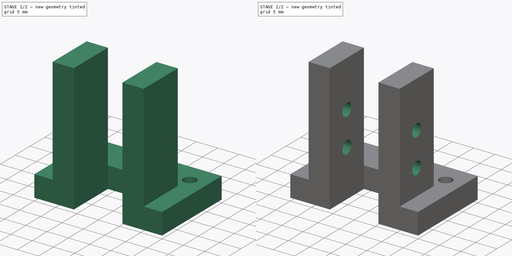
[diagram: build sequence overview — one tinted view per stage of 2, left to right]
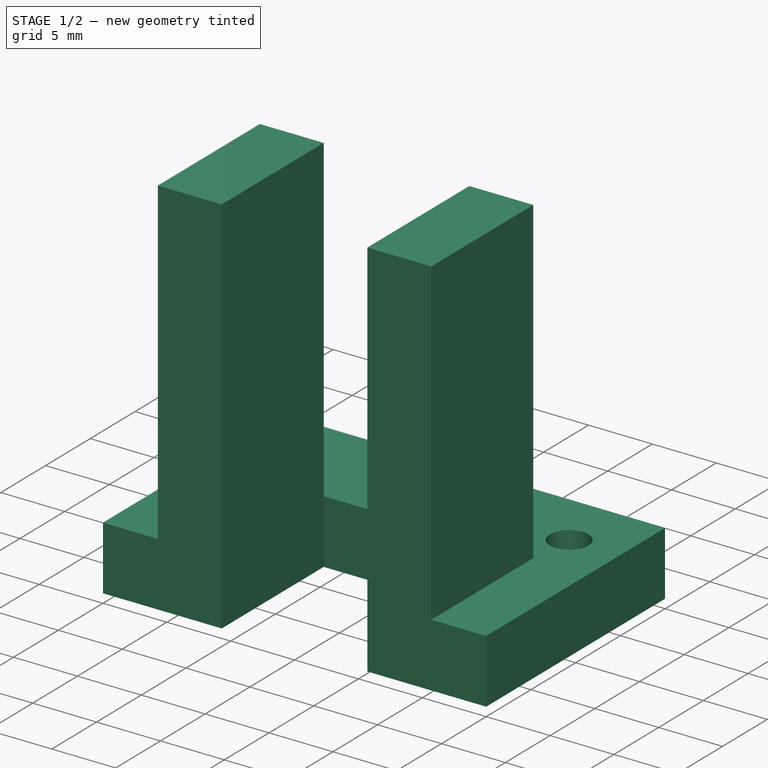
[diagram: stage 1 of 2 — iso view after this stage's code; geometry added in this stage tinted green]
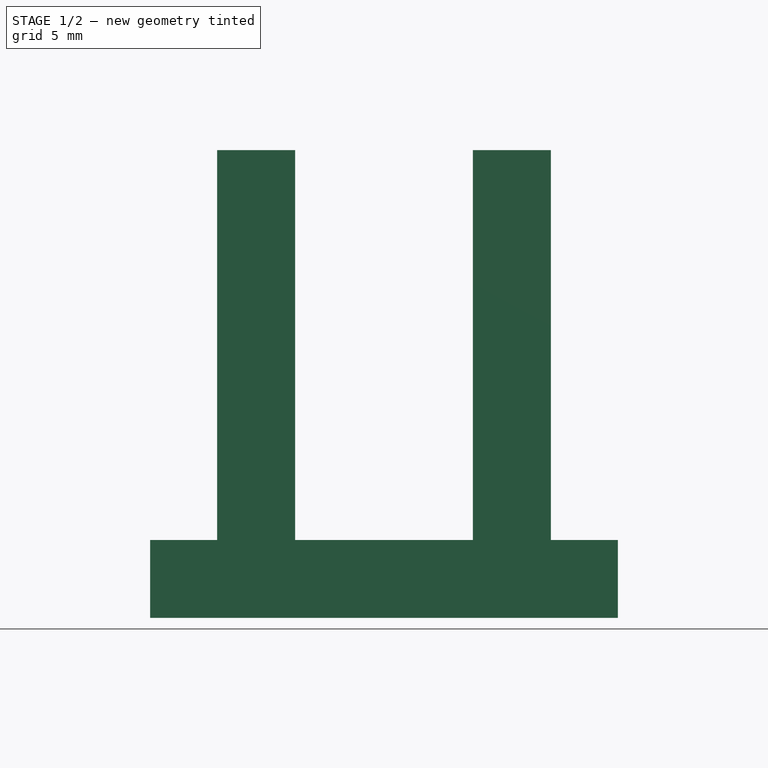
[diagram: stage 1 of 2 — front view after this stage's code; geometry added in this stage tinted green]
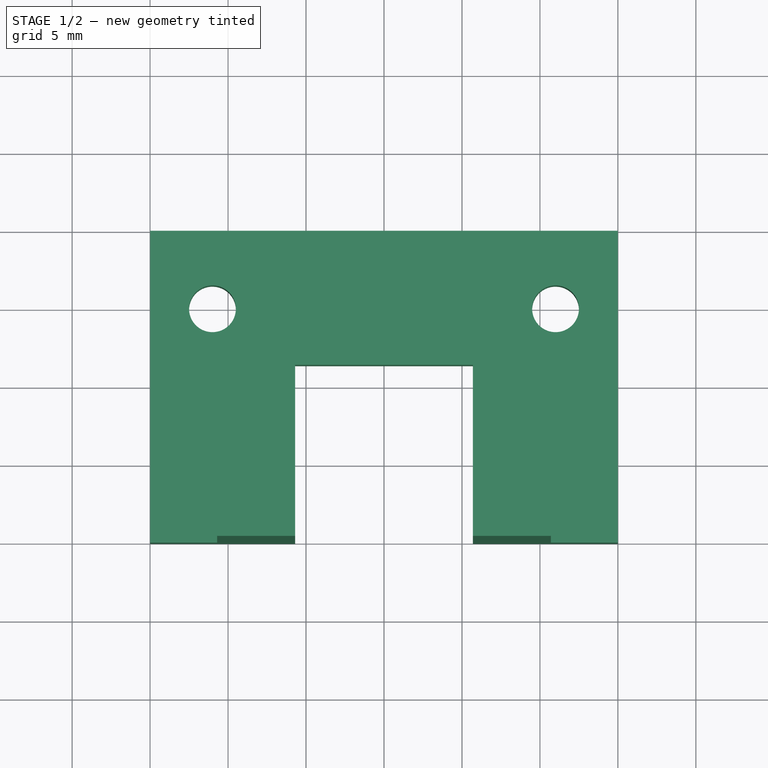
[diagram: stage 1 of 2 — top view after this stage's code; geometry added in this stage tinted green]
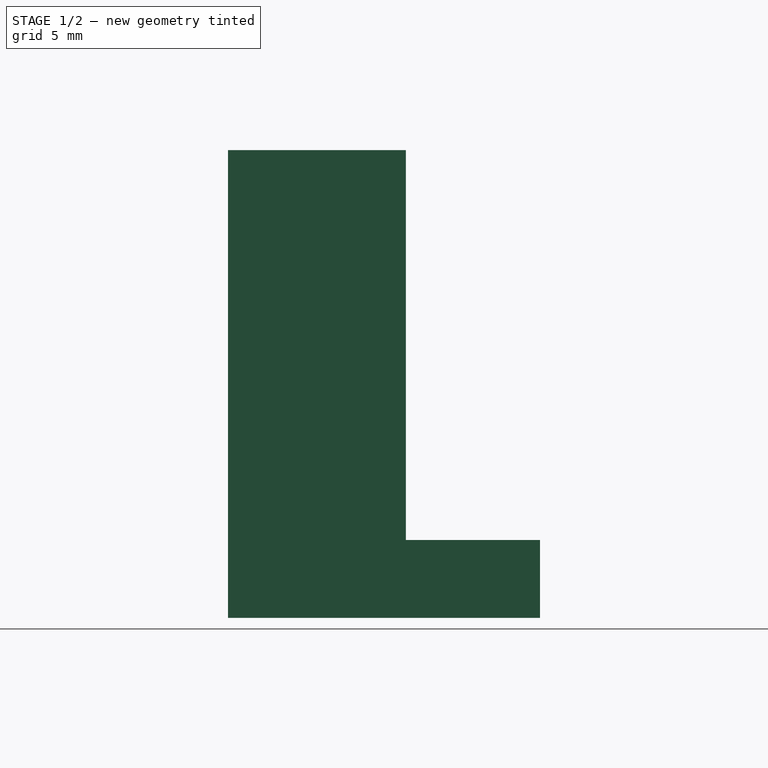
[diagram: stage 1 of 2 — right view after this stage's code; geometry added in this stage tinted green]
FCSTD DOCUMENT  (FreeCAD 0.16R6707 (Git))
Label: support_étage_2
License: All rights reserved
LicenseURL: http://en.wikipedia.org/wiki/All_rights_reserved
objects: Sketcher::SketchObject×3, PartDesign::Pad×2, PartDesign::Pocket×1
note: 9 computed .brp shape members not serialized (recipe doc carries the construction recipe); baked Part::Feature solids carry a one-line shape summary decoded from their .brp

FEATURE [Sketcher::SketchObject] Sketch
  sketch-geometry (10):
    g0: LineSegment StartX=0 StartY=0 StartZ=0 EndX=0 EndY=20 EndZ=0
    g1: LineSegment StartX=0 StartY=20 StartZ=0 EndX=30 EndY=20 EndZ=0
    g2: LineSegment StartX=30 StartY=20 StartZ=0 EndX=30 EndY=0 EndZ=0
    g3: LineSegment StartX=30 StartY=0 StartZ=0 EndX=20.7 EndY=0 EndZ=0
    g4: LineSegment StartX=20.7 StartY=0 StartZ=0 EndX=20.7 EndY=11.4 EndZ=0
    g5: LineSegment StartX=20.7 StartY=11.4 StartZ=0 EndX=9.3 EndY=11.4 EndZ=0
    g6: LineSegment StartX=9.3 StartY=11.4 StartZ=0 EndX=9.3 EndY=0 EndZ=0
    g7: LineSegment StartX=9.3 StartY=0 StartZ=0 EndX=0 EndY=0 EndZ=0
    g8: Circle CenterX=4 CenterY=15 CenterZ=0 NormalX=0 NormalY=0 NormalZ=1 Radius=1.5
    g9: Circle CenterX=26 CenterY=15 CenterZ=0 NormalX=0 NormalY=0 NormalZ=1 Radius=1.5
  constraints (29):
    c: Coincident(g-1,g0)
    c: Vertical(g0)
    c: Coincident(g0,g1)
    c: Horizontal(g1)
    c: Coincident(g1,g2)
    c: Vertical(g2)
    c: Coincident(g2,g3)
    c: Horizontal(g3)
    c: Coincident(g3,g4)
    c: Vertical(g4)
    c: Coincident(g4,g5)
    c: Horizontal(g5)
    c: Coincident(g5,g6)
    c: Vertical(g6)
    c: Coincident(g6,g7)
    c: Coincident(g7,g0)
    c: Horizontal(g7)
    c: Distance(g5) = 11.4
    c: Distance(g6) = 11.4
    c: Distance(g0) = 20
    c: Distance(g1) = 30
    c: Distance(g7) = 9.3
    c: Distance(g2) = 20
    c: Radius(g8) = 1.5
    c: Equal(g8,g9)
    c: DistanceY(g8) = 15
    c: DistanceY(g9,g8) = 0
    c: DistanceX(g8) = 4
    c: DistanceX(g9,g1) = 4
FEATURE [PartDesign::Pad] Pad
  Length = 5
  Length2 = 100
  Sketch = -> Sketch
  Type = 0
FEATURE [Sketcher::SketchObject] Sketch001
  Placement = pos=(0,0,5) rot=(0,0,1;0rad)
  Support = -> Pad [Face12]
  sketch-geometry (8):
    g0: LineSegment StartX=4.3 StartY=11.4 StartZ=0 EndX=9.3 EndY=11.4 EndZ=0
    g1: LineSegment StartX=9.3 StartY=11.4 StartZ=0 EndX=9.3 EndY=0 EndZ=0
    g2: LineSegment StartX=9.3 StartY=0 StartZ=0 EndX=4.3 EndY=0 EndZ=0
    g3: LineSegment StartX=4.3 StartY=0 StartZ=0 EndX=4.3 EndY=11.4 EndZ=0
    g4: LineSegment StartX=20.7 StartY=11.4 StartZ=0 EndX=25.7 EndY=11.4 EndZ=0
    g5: LineSegment StartX=25.7 StartY=11.4 StartZ=0 EndX=25.7 EndY=0 EndZ=0
    g6: LineSegment StartX=25.7 StartY=0 StartZ=0 EndX=20.7 EndY=0 EndZ=0
    g7: LineSegment StartX=20.7 StartY=0 StartZ=0 EndX=20.7 EndY=11.4 EndZ=0
  constraints (24):
    c: Coincident(g0,g1)
    c: Coincident(g1,g2)
    c: Coincident(g2,g3)
    c: Coincident(g3,g0)
    c: Horizontal(g0)
    c: Horizontal(g2)
    c: Vertical(g1)
    c: Vertical(g3)
    c: Coincident(g4,g5)
    c: Coincident(g5,g6)
    c: Coincident(g6,g7)
    c: Coincident(g7,g4)
    c: Horizontal(g4)
    c: Horizontal(g6)
    c: Vertical(g5)
    c: Vertical(g7)
    c: DistanceX(g1) = 9.3
    c: DistanceX(g1,g6) = 11.4
    c: DistanceY(g1) = 0
    c: DistanceY(g6) = 0
    c: Distance(g0) = 5
    c: Distance(g3) = 11.4
    c: Distance(g7) = 11.4
    c: Distance(g4) = 5
FEATURE [PartDesign::Pad] Pad001
  Length = 25
  Length2 = 100
  Sketch = -> Sketch001
  Type = 0
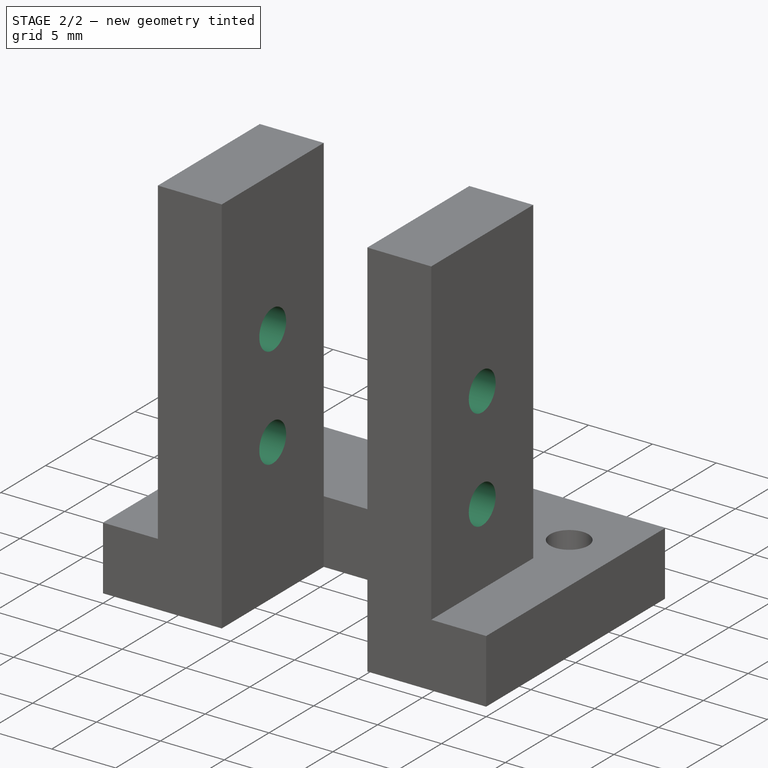
[diagram: stage 2 of 2 — iso view after this stage's code; geometry added in this stage tinted green]
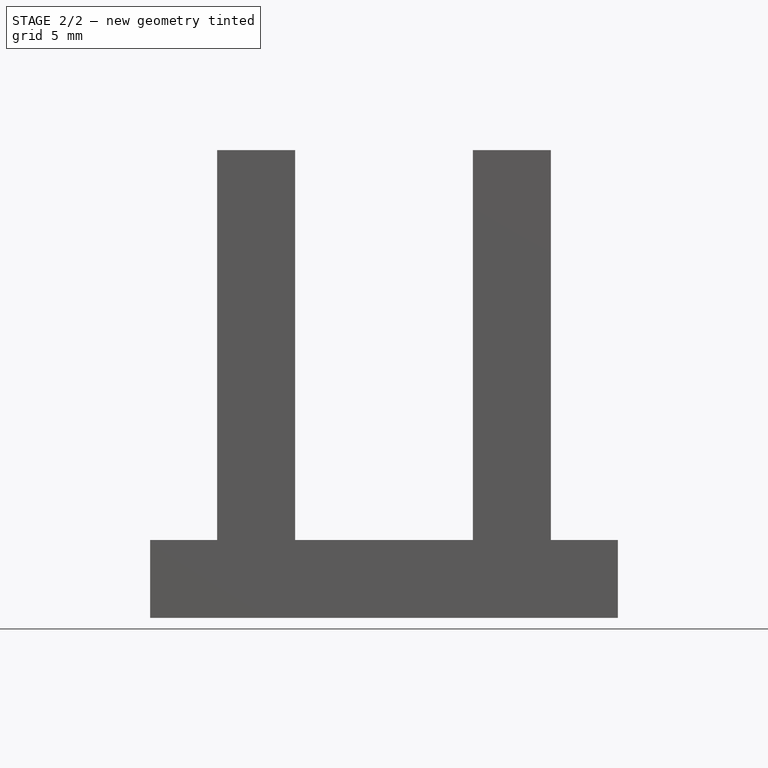
[diagram: stage 2 of 2 — front view after this stage's code; geometry added in this stage tinted green]
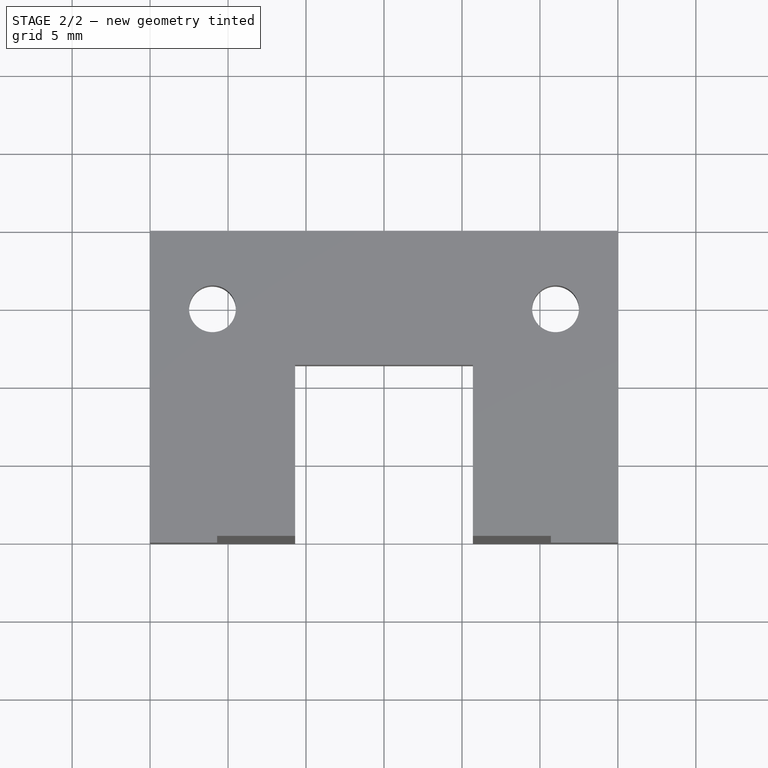
[diagram: stage 2 of 2 — top view after this stage's code; geometry added in this stage tinted green]
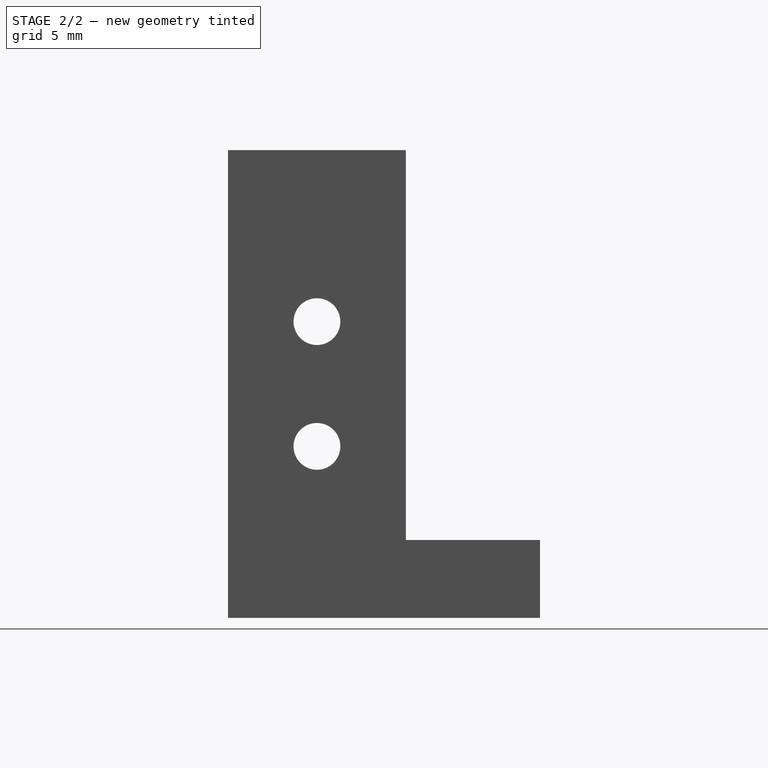
[diagram: stage 2 of 2 — right view after this stage's code; geometry added in this stage tinted green]
FEATURE [Sketcher::SketchObject] Sketch002
  Placement = pos=(25.7,0,0) rot=(0.57735,0.57735,0.57735;2.0944rad)
  Support = -> Pad001 [Face14]
  sketch-geometry (2):
    g0: Circle CenterX=5.7 CenterY=19 CenterZ=0 NormalX=0 NormalY=0 NormalZ=1 Radius=1.5
    g1: Circle CenterX=5.7 CenterY=11 CenterZ=0 NormalX=0 NormalY=0 NormalZ=1 Radius=1.5
  constraints (6):
    c: DistanceY(g1) = 11
    c: DistanceX(g1) = 5.7
    c: DistanceX(g0,g1) = 0
    c: DistanceY(g1,g0) = 8
    c: Radius(g1) = 1.5
    c: Equal(g1,g0)
FEATURE [PartDesign::Pocket] Pocket
  Length = 5
  Sketch = -> Sketch002
  Type = 1
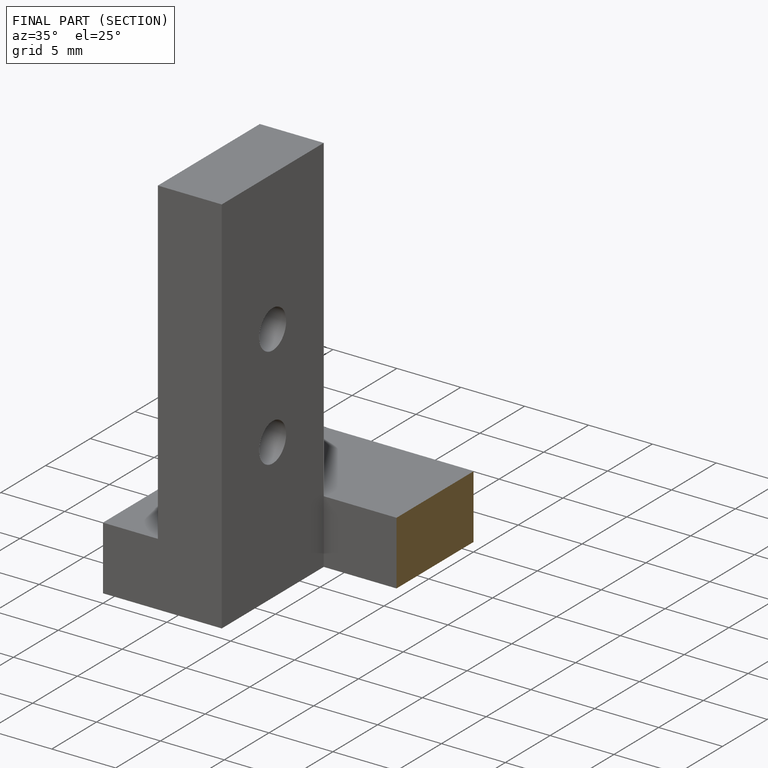
[diagram: finished part — half-section view (interior)]
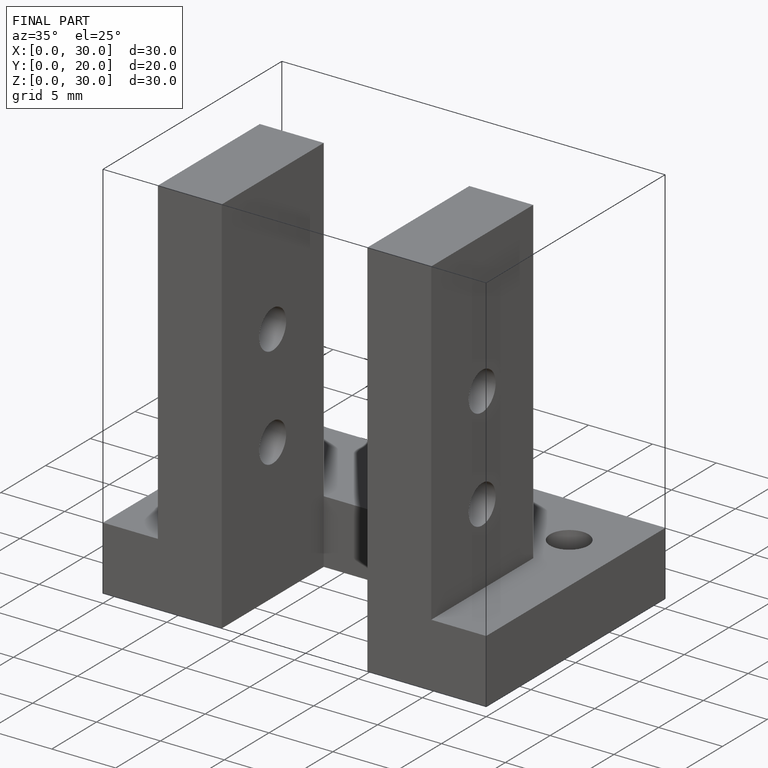
[diagram: finished part — iso view with bounding-box wireframe]
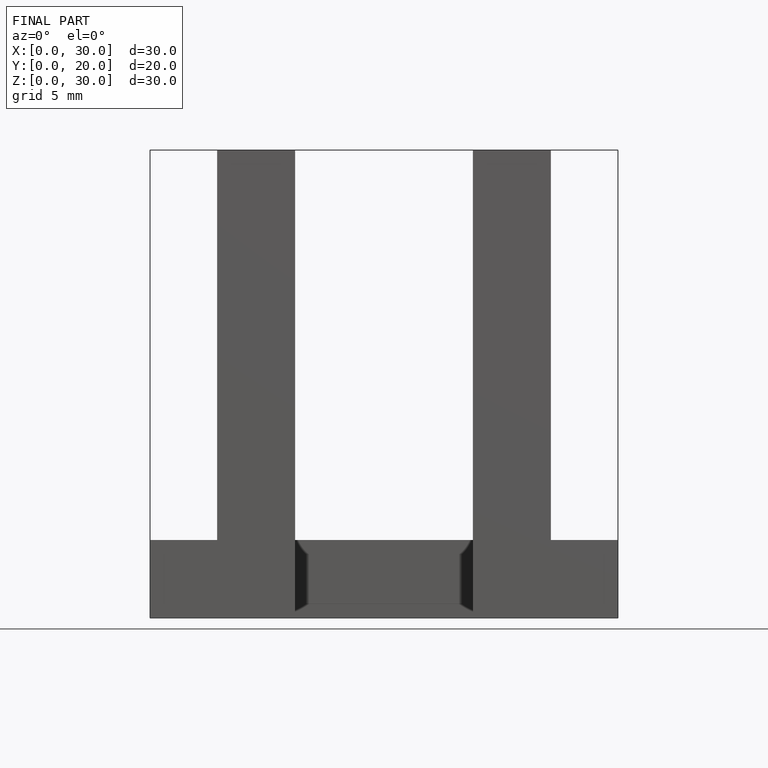
[diagram: finished part — front view with bounding-box wireframe]
